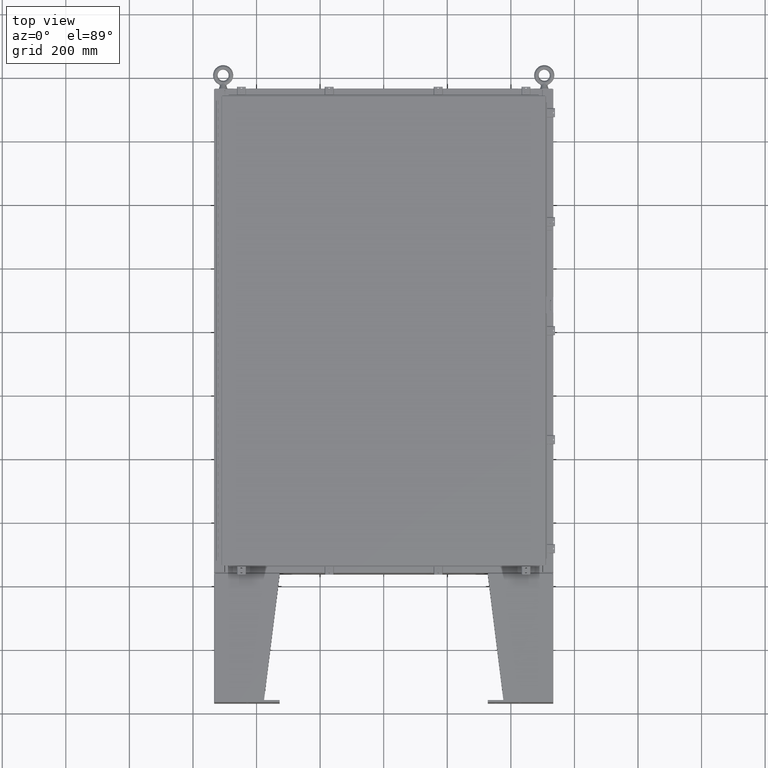
[diagram: clean part render]
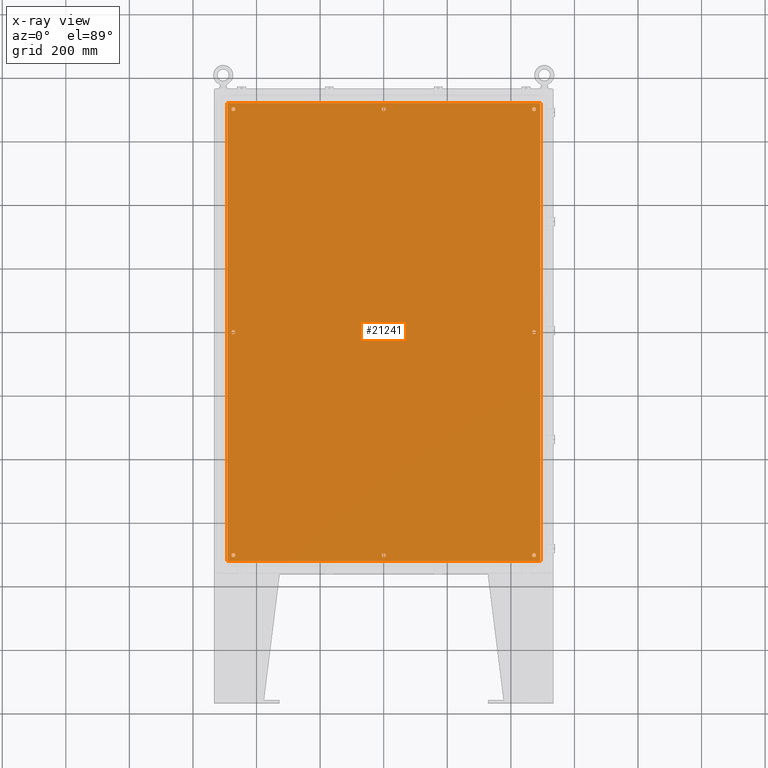
[diagram: x-ray — body ghosted, one internal face saturated and labeled with its STEP entity id]
A machine part, top view, then the same camera in x-ray: the body is ghosted and one INTERNAL B-rep face — a face not visible from any outside direction — is saturated and labeled: STEP entity #21241.
In plain terms, the highlighted planar face has unit normal (0, 0, -1).
Its self-contained STEP definition (entity closure, byte-faithful):
#26 = CARTESIAN_POINT ( 'NONE',  ( 18.62500000000000000, 3.731924441611932400E-015, -0.1039999999999999800 ) ) ;
#32 = ORIENTED_EDGE ( 'NONE', *, *, #7234, .T. ) ;
#683 = CARTESIAN_POINT ( 'NONE',  ( -18.87500000000000400, 27.62500000000000400, -0.1039999999999999800 ) ) ;
#751 = ORIENTED_EDGE ( 'NONE', *, *, #51298, .T. ) ;
#1465 = ORIENTED_EDGE ( 'NONE', *, *, #62205, .F. ) ;
#1904 = EDGE_LOOP ( 'NONE', ( #41584, #44490 ) ) ;
#1948 = DIRECTION ( 'NONE',  ( -1.000000000000000000, 0.0000000000000000000, 0.0000000000000000000 ) ) ;
#2456 = CARTESIAN_POINT ( 'NONE',  ( 18.87500000000000000, -27.62500000000000400, -0.1039999999999999800 ) ) ;
#2598 = EDGE_CURVE ( 'NONE', #55095, #9543, #25563, .T. ) ;
#3137 = LINE ( 'NONE', #18826, #15392 ) ;
#3405 = DIRECTION ( 'NONE',  ( 0.0000000000000000000, 0.0000000000000000000, -1.000000000000000000 ) ) ;
#3638 = DIRECTION ( 'NONE',  ( -0.0000000000000000000, -0.0000000000000000000, 1.000000000000000000 ) ) ;
#3877 = FACE_BOUND ( 'NONE', #57519, .T. ) ;
#4100 = DIRECTION ( 'NONE',  ( -1.000000000000000000, 0.0000000000000000000, 0.0000000000000000000 ) ) ;
#4370 = EDGE_CURVE ( 'NONE', #39508, #15776, #17020, .T. ) ;
#4381 = EDGE_CURVE ( 'NONE', #55739, #55095, #3137, .T. ) ;
#4518 = AXIS2_PLACEMENT_3D ( 'NONE', #26998, #63528, #32205 ) ;
#4700 = CIRCLE ( 'NONE', #65186, 0.2499999999999987000 ) ;
#4866 = EDGE_CURVE ( 'NONE', #29603, #47722, #4700, .T. ) ;
#5291 = DIRECTION ( 'NONE',  ( -1.000000000000000000, 0.0000000000000000000, 0.0000000000000000000 ) ) ;
#5389 = CIRCLE ( 'NONE', #6233, 0.2499999999999987000 ) ;
#5390 = DIRECTION ( 'NONE',  ( -1.000000000000000000, 0.0000000000000000000, 0.0000000000000000000 ) ) ;
#6233 = AXIS2_PLACEMENT_3D ( 'NONE', #64674, #33301, #1948 ) ;
#6781 = CARTESIAN_POINT ( 'NONE',  ( -18.62500000000000000, -8.298848852119578500E-016, -0.1039999999999999800 ) ) ;
#7234 = EDGE_CURVE ( 'NONE', #35538, #40158, #60959, .T. ) ;
#7834 = CARTESIAN_POINT ( 'NONE',  ( -18.62500000000000000, -8.298848852119578500E-016, -0.1039999999999999800 ) ) ;
#8259 = LINE ( 'NONE', #62264, #48500 ) ;
#9543 = VERTEX_POINT ( 'NONE', #11651 ) ;
#9567 = CARTESIAN_POINT ( 'NONE',  ( -18.37500000000000400, 27.62500000000000400, -0.1039999999999999800 ) ) ;
#10201 = CARTESIAN_POINT ( 'NONE',  ( -0.2499999999999998600, 27.62500000000000400, -0.1039999999999999800 ) ) ;
#10490 = EDGE_LOOP ( 'NONE', ( #28289, #751 ) ) ;
#10669 = DIRECTION ( 'NONE',  ( -1.000000000000000000, 0.0000000000000000000, 0.0000000000000000000 ) ) ;
#11026 = ORIENTED_EDGE ( 'NONE', *, *, #32212, .T. ) ;
#11651 = CARTESIAN_POINT ( 'NONE',  ( 19.38299999999999900, 28.38299999999999600, -0.1040000000000009100 ) ) ;
#11949 = VERTEX_POINT ( 'NONE', #10201 ) ;
#12043 = CIRCLE ( 'NONE', #38269, 0.2499999999999987000 ) ;
#12052 = DIRECTION ( 'NONE',  ( -1.000000000000000000, 0.0000000000000000000, -0.0000000000000000000 ) ) ;
#12058 = CARTESIAN_POINT ( 'NONE',  ( 0.0000000000000000000, 27.62500000000000400, -0.1039999999999999800 ) ) ;
#12067 = DIRECTION ( 'NONE',  ( -1.000000000000000000, 0.0000000000000000000, 0.0000000000000000000 ) ) ;
#12739 = VERTEX_POINT ( 'NONE', #62597 ) ;
#13074 = DIRECTION ( 'NONE',  ( -1.000000000000000000, 0.0000000000000000000, 0.0000000000000000000 ) ) ;
#13970 = CARTESIAN_POINT ( 'NONE',  ( 19.38299999999999900, -28.38299999999999600, -0.1040000000000009100 ) ) ;
#14609 = ORIENTED_EDGE ( 'NONE', *, *, #4370, .T. ) ;
#14869 = CARTESIAN_POINT ( 'NONE',  ( 18.62500000000000000, 3.731924441611932400E-015, -0.1039999999999999800 ) ) ;
#15392 = VECTOR ( 'NONE', #23485, 39.37007874015748100 ) ;
#15520 = DIRECTION ( 'NONE',  ( -1.000000000000000000, -0.0000000000000000000, -0.0000000000000000000 ) ) ;
#15776 = VERTEX_POINT ( 'NONE', #683 ) ;
#16146 = FACE_OUTER_BOUND ( 'NONE', #47618, .T. ) ;
#16373 = CARTESIAN_POINT ( 'NONE',  ( 18.37500000000000000, 3.762540611590616200E-015, -0.1039999999999999800 ) ) ;
#16906 = CARTESIAN_POINT ( 'NONE',  ( 0.0000000000000000000, 0.0000000000000000000, -0.1039999999999999800 ) ) ;
#17020 = CIRCLE ( 'NONE', #34943, 0.2500000000000008900 ) ;
#17292 = EDGE_LOOP ( 'NONE', ( #67923, #67004 ) ) ;
#17368 = EDGE_CURVE ( 'NONE', #28301, #41903, #33025, .T. ) ;
#17794 = FACE_BOUND ( 'NONE', #10490, .T. ) ;
#17936 = CARTESIAN_POINT ( 'NONE',  ( 18.62500000000000000, -27.62500000000000400, -0.1039999999999999800 ) ) ;
#18129 = CARTESIAN_POINT ( 'NONE',  ( 18.37500000000000400, 27.62500000000000400, -0.1039999999999999800 ) ) ;
#18137 = EDGE_CURVE ( 'NONE', #11949, #37387, #44402, .T. ) ;
#18826 = CARTESIAN_POINT ( 'NONE',  ( -19.49999999999999600, -28.38300000000000300, -0.1040000000000009400 ) ) ;
#19166 = CARTESIAN_POINT ( 'NONE',  ( -0.2500000000000011700, -27.62500000000000400, -0.1039999999999999800 ) ) ;
#20392 = DIRECTION ( 'NONE',  ( 0.0000000000000000000, -1.000000000000000000, 0.0000000000000000000 ) ) ;
#20799 = ORIENTED_EDGE ( 'NONE', *, *, #18137, .T. ) ;
#21241 = ADVANCED_FACE ( 'NONE', ( #64557, #45692, #31803, #17794, #3877, #57999, #44070, #30152, #16146 ), #35349, .T. ) ;
#21266 = ORIENTED_EDGE ( 'NONE', *, *, #66735, .T. ) ;
#22664 = CARTESIAN_POINT ( 'NONE',  ( 18.62500000000000000, 27.62500000000000400, -0.1039999999999999800 ) ) ;
#23420 = CARTESIAN_POINT ( 'NONE',  ( 0.0000000000000000000, -27.62500000000000400, -0.1039999999999999800 ) ) ;
#23485 = DIRECTION ( 'NONE',  ( 1.000000000000000000, -0.0000000000000000000, -0.0000000000000000000 ) ) ;
#23692 = DIRECTION ( 'NONE',  ( -0.0000000000000000000, -0.0000000000000000000, 1.000000000000000000 ) ) ;
#25434 = CARTESIAN_POINT ( 'NONE',  ( 18.62500000000000000, 27.62500000000000400, -0.1039999999999999800 ) ) ;
#25563 = LINE ( 'NONE', #38381, #51760 ) ;
#25808 = AXIS2_PLACEMENT_3D ( 'NONE', #55078, #23692, #60291 ) ;
#25817 = ORIENTED_EDGE ( 'NONE', *, *, #39419, .T. ) ;
#25846 = AXIS2_PLACEMENT_3D ( 'NONE', #6781, #43477, #12067 ) ;
#26998 = CARTESIAN_POINT ( 'NONE',  ( -18.62500000000000000, -27.62500000000000400, -0.1039999999999999800 ) ) ;
#27263 = EDGE_LOOP ( 'NONE', ( #21266, #11026 ) ) ;
#27734 = CIRCLE ( 'NONE', #4518, 0.2499999999999987000 ) ;
#27870 = VERTEX_POINT ( 'NONE', #54971 ) ;
#28076 = AXIS2_PLACEMENT_3D ( 'NONE', #17936, #54582, #5390 ) ;
#28289 = ORIENTED_EDGE ( 'NONE', *, *, #60236, .T. ) ;
#28301 = VERTEX_POINT ( 'NONE', #16373 ) ;
#28321 = VERTEX_POINT ( 'NONE', #32459 ) ;
#28754 = DIRECTION ( 'NONE',  ( -1.000000000000000000, 0.0000000000000000000, 0.0000000000000000000 ) ) ;
#29432 = CARTESIAN_POINT ( 'NONE',  ( 0.0000000000000000000, 27.62500000000000400, -0.1039999999999999800 ) ) ;
#29603 = VERTEX_POINT ( 'NONE', #18129 ) ;
#30152 = FACE_BOUND ( 'NONE', #35851, .T. ) ;
#30672 = DIRECTION ( 'NONE',  ( -1.000000000000000000, 0.0000000000000000000, 0.0000000000000000000 ) ) ;
#31140 = DIRECTION ( 'NONE',  ( -0.0000000000000000000, -0.0000000000000000000, 1.000000000000000000 ) ) ;
#31480 = AXIS2_PLACEMENT_3D ( 'NONE', #16906, #3405, #12052 ) ;
#31803 = FACE_BOUND ( 'NONE', #17292, .T. ) ;
#32119 = CARTESIAN_POINT ( 'NONE',  ( 0.2499999999999998600, 27.62500000000000400, -0.1039999999999999800 ) ) ;
#32205 = DIRECTION ( 'NONE',  ( -1.000000000000000000, 0.0000000000000000000, 0.0000000000000000000 ) ) ;
#32212 = EDGE_CURVE ( 'NONE', #39425, #12739, #40870, .T. ) ;
#32459 = CARTESIAN_POINT ( 'NONE',  ( -18.87500000000000000, -7.992687152332741600E-016, -0.1039999999999999800 ) ) ;
#33024 = EDGE_CURVE ( 'NONE', #46582, #63769, #27734, .T. ) ;
#33025 = CIRCLE ( 'NONE', #34520, 0.2500000000000008900 ) ;
#33301 = DIRECTION ( 'NONE',  ( -0.0000000000000000000, -0.0000000000000000000, 1.000000000000000000 ) ) ;
#33866 = AXIS2_PLACEMENT_3D ( 'NONE', #26, #36689, #5291 ) ;
#34135 = CARTESIAN_POINT ( 'NONE',  ( -18.87500000000000000, -27.62500000000000400, -0.1039999999999999800 ) ) ;
#34218 = CARTESIAN_POINT ( 'NONE',  ( 18.37500000000000400, -27.62500000000000400, -0.1039999999999999800 ) ) ;
#34224 = EDGE_LOOP ( 'NONE', ( #32, #25817 ) ) ;
#34325 = EDGE_CURVE ( 'NONE', #15776, #39508, #58617, .T. ) ;
#34520 = AXIS2_PLACEMENT_3D ( 'NONE', #14869, #50660, #42594 ) ;
#34684 = DIRECTION ( 'NONE',  ( -1.000000000000000000, 0.0000000000000000000, 0.0000000000000000000 ) ) ;
#34715 = DIRECTION ( 'NONE',  ( 0.0000000000000000000, 1.000000000000000000, 0.0000000000000000000 ) ) ;
#34943 = AXIS2_PLACEMENT_3D ( 'NONE', #35026, #58253, #10669 ) ;
#35026 = CARTESIAN_POINT ( 'NONE',  ( -18.62500000000000400, 27.62500000000000400, -0.1039999999999999800 ) ) ;
#35049 = CARTESIAN_POINT ( 'NONE',  ( 18.62500000000000000, -27.62500000000000400, -0.1039999999999999800 ) ) ;
#35183 = AXIS2_PLACEMENT_3D ( 'NONE', #29432, #66000, #34684 ) ;
#35349 = PLANE ( 'NONE',  #31480 ) ;
#35534 = DIRECTION ( 'NONE',  ( -0.0000000000000000000, -0.0000000000000000000, 1.000000000000000000 ) ) ;
#35538 = VERTEX_POINT ( 'NONE', #2456 ) ;
#35851 = EDGE_LOOP ( 'NONE', ( #14609, #43874 ) ) ;
#35941 = ORIENTED_EDGE ( 'NONE', *, *, #38945, .F. ) ;
#36015 = CARTESIAN_POINT ( 'NONE',  ( -19.38299999999999900, 28.38299999999999600, -0.1040000000000052800 ) ) ;
#36689 = DIRECTION ( 'NONE',  ( -0.0000000000000000000, -0.0000000000000000000, 1.000000000000000000 ) ) ;
#36709 = VECTOR ( 'NONE', #20392, 39.37007874015748100 ) ;
#37387 = VERTEX_POINT ( 'NONE', #32119 ) ;
#37449 = ORIENTED_EDGE ( 'NONE', *, *, #4381, .F. ) ;
#38269 = AXIS2_PLACEMENT_3D ( 'NONE', #35049, #3638, #40326 ) ;
#38381 = CARTESIAN_POINT ( 'NONE',  ( 19.38299999999999900, -28.38299999999999600, -0.1040000000000009100 ) ) ;
#38783 = EDGE_CURVE ( 'NONE', #37387, #11949, #60466, .T. ) ;
#38945 = EDGE_CURVE ( 'NONE', #48461, #55739, #50695, .T. ) ;
#39030 = EDGE_CURVE ( 'NONE', #41903, #28301, #61254, .T. ) ;
#39344 = CIRCLE ( 'NONE', #44647, 0.2500000000000008900 ) ;
#39419 = EDGE_CURVE ( 'NONE', #40158, #35538, #12043, .T. ) ;
#39425 = VERTEX_POINT ( 'NONE', #19166 ) ;
#39508 = VERTEX_POINT ( 'NONE', #9567 ) ;
#40023 = EDGE_CURVE ( 'NONE', #63769, #46582, #5389, .T. ) ;
#40158 = VERTEX_POINT ( 'NONE', #34218 ) ;
#40326 = DIRECTION ( 'NONE',  ( -1.000000000000000000, 0.0000000000000000000, 0.0000000000000000000 ) ) ;
#40870 = CIRCLE ( 'NONE', #65917, 0.2500000000000011700 ) ;
#41114 = AXIS2_PLACEMENT_3D ( 'NONE', #12058, #31140, #64330 ) ;
#41584 = ORIENTED_EDGE ( 'NONE', *, *, #62655, .T. ) ;
#41594 = DIRECTION ( 'NONE',  ( -1.000000000000000000, 0.0000000000000000000, 0.0000000000000000000 ) ) ;
#41786 = ORIENTED_EDGE ( 'NONE', *, *, #2598, .F. ) ;
#41903 = VERTEX_POINT ( 'NONE', #61659 ) ;
#42131 = CIRCLE ( 'NONE', #25846, 0.2500000000000008900 ) ;
#42594 = DIRECTION ( 'NONE',  ( -1.000000000000000000, 0.0000000000000000000, 0.0000000000000000000 ) ) ;
#42975 = DIRECTION ( 'NONE',  ( -0.0000000000000000000, -0.0000000000000000000, 1.000000000000000000 ) ) ;
#43163 = ORIENTED_EDGE ( 'NONE', *, *, #33024, .T. ) ;
#43477 = DIRECTION ( 'NONE',  ( -0.0000000000000000000, -0.0000000000000000000, 1.000000000000000000 ) ) ;
#43874 = ORIENTED_EDGE ( 'NONE', *, *, #34325, .T. ) ;
#44070 = FACE_BOUND ( 'NONE', #1904, .T. ) ;
#44402 = CIRCLE ( 'NONE', #41114, 0.2499999999999998600 ) ;
#44490 = ORIENTED_EDGE ( 'NONE', *, *, #4866, .T. ) ;
#44504 = DIRECTION ( 'NONE',  ( -0.0000000000000000000, -0.0000000000000000000, 1.000000000000000000 ) ) ;
#44647 = AXIS2_PLACEMENT_3D ( 'NONE', #7834, #44504, #13074 ) ;
#45692 = FACE_BOUND ( 'NONE', #50552, .T. ) ;
#46582 = VERTEX_POINT ( 'NONE', #56567 ) ;
#47618 = EDGE_LOOP ( 'NONE', ( #37449, #35941, #1465, #41786 ) ) ;
#47722 = VERTEX_POINT ( 'NONE', #60403 ) ;
#48461 = VERTEX_POINT ( 'NONE', #63278 ) ;
#48500 = VECTOR ( 'NONE', #15520, 39.37007874015748100 ) ;
#50552 = EDGE_LOOP ( 'NONE', ( #64745, #20799 ) ) ;
#50660 = DIRECTION ( 'NONE',  ( -0.0000000000000000000, -0.0000000000000000000, 1.000000000000000000 ) ) ;
#50695 = LINE ( 'NONE', #36015, #36709 ) ;
#51093 = CARTESIAN_POINT ( 'NONE',  ( -19.38299999999999900, -28.38300000000000300, -0.1040000000000009400 ) ) ;
#51298 = EDGE_CURVE ( 'NONE', #28321, #27870, #39344, .T. ) ;
#51760 = VECTOR ( 'NONE', #34715, 39.37007874015748100 ) ;
#54582 = DIRECTION ( 'NONE',  ( -0.0000000000000000000, -0.0000000000000000000, 1.000000000000000000 ) ) ;
#54971 = CARTESIAN_POINT ( 'NONE',  ( -18.37500000000000000, -8.298848852119578500E-016, -0.1039999999999999800 ) ) ;
#55078 = CARTESIAN_POINT ( 'NONE',  ( -18.62500000000000400, 27.62500000000000400, -0.1039999999999999800 ) ) ;
#55095 = VERTEX_POINT ( 'NONE', #13970 ) ;
#55321 = ORIENTED_EDGE ( 'NONE', *, *, #40023, .T. ) ;
#55739 = VERTEX_POINT ( 'NONE', #51093 ) ;
#56567 = CARTESIAN_POINT ( 'NONE',  ( -18.37500000000000400, -27.62500000000000400, -0.1039999999999999800 ) ) ;
#57519 = EDGE_LOOP ( 'NONE', ( #43163, #55321 ) ) ;
#57999 = FACE_BOUND ( 'NONE', #34224, .T. ) ;
#58253 = DIRECTION ( 'NONE',  ( -0.0000000000000000000, -0.0000000000000000000, 1.000000000000000000 ) ) ;
#58617 = CIRCLE ( 'NONE', #25808, 0.2500000000000008900 ) ;
#60032 = DIRECTION ( 'NONE',  ( -0.0000000000000000000, -0.0000000000000000000, 1.000000000000000000 ) ) ;
#60236 = EDGE_CURVE ( 'NONE', #27870, #28321, #42131, .T. ) ;
#60249 = AXIS2_PLACEMENT_3D ( 'NONE', #23420, #60032, #28754 ) ;
#60291 = DIRECTION ( 'NONE',  ( -1.000000000000000000, 0.0000000000000000000, 0.0000000000000000000 ) ) ;
#60403 = CARTESIAN_POINT ( 'NONE',  ( 18.87500000000000000, 27.62500000000000400, -0.1039999999999999800 ) ) ;
#60466 = CIRCLE ( 'NONE', #35183, 0.2499999999999998600 ) ;
#60957 = AXIS2_PLACEMENT_3D ( 'NONE', #25434, #61976, #30672 ) ;
#60959 = CIRCLE ( 'NONE', #28076, 0.2499999999999987000 ) ;
#61254 = CIRCLE ( 'NONE', #33866, 0.2500000000000008900 ) ;
#61659 = CARTESIAN_POINT ( 'NONE',  ( 18.87500000000000000, 3.731924441611932400E-015, -0.1039999999999999800 ) ) ;
#61976 = DIRECTION ( 'NONE',  ( -0.0000000000000000000, -0.0000000000000000000, 1.000000000000000000 ) ) ;
#62205 = EDGE_CURVE ( 'NONE', #9543, #48461, #8259, .T. ) ;
#62264 = CARTESIAN_POINT ( 'NONE',  ( 19.50000000000000000, 28.38300000000000300, -0.1040000000000009400 ) ) ;
#62597 = CARTESIAN_POINT ( 'NONE',  ( 0.2500000000000011700, -27.62500000000000400, -0.1039999999999999800 ) ) ;
#62655 = EDGE_CURVE ( 'NONE', #47722, #29603, #65571, .T. ) ;
#63278 = CARTESIAN_POINT ( 'NONE',  ( -19.38299999999999900, 28.38299999999999600, -0.1040000000000052800 ) ) ;
#63528 = DIRECTION ( 'NONE',  ( -0.0000000000000000000, -0.0000000000000000000, 1.000000000000000000 ) ) ;
#63769 = VERTEX_POINT ( 'NONE', #34135 ) ;
#64330 = DIRECTION ( 'NONE',  ( -1.000000000000000000, 0.0000000000000000000, 0.0000000000000000000 ) ) ;
#64557 = FACE_BOUND ( 'NONE', #27263, .T. ) ;
#64674 = CARTESIAN_POINT ( 'NONE',  ( -18.62500000000000000, -27.62500000000000400, -0.1039999999999999800 ) ) ;
#64745 = ORIENTED_EDGE ( 'NONE', *, *, #38783, .T. ) ;
#65186 = AXIS2_PLACEMENT_3D ( 'NONE', #22664, #42975, #41594 ) ;
#65571 = CIRCLE ( 'NONE', #60957, 0.2499999999999987000 ) ;
#65917 = AXIS2_PLACEMENT_3D ( 'NONE', #66852, #35534, #4100 ) ;
#66000 = DIRECTION ( 'NONE',  ( -0.0000000000000000000, -0.0000000000000000000, 1.000000000000000000 ) ) ;
#66735 = EDGE_CURVE ( 'NONE', #12739, #39425, #67356, .T. ) ;
#66852 = CARTESIAN_POINT ( 'NONE',  ( 0.0000000000000000000, -27.62500000000000400, -0.1039999999999999800 ) ) ;
#67004 = ORIENTED_EDGE ( 'NONE', *, *, #17368, .T. ) ;
#67356 = CIRCLE ( 'NONE', #60249, 0.2500000000000011700 ) ;
#67923 = ORIENTED_EDGE ( 'NONE', *, *, #39030, .T. ) ;